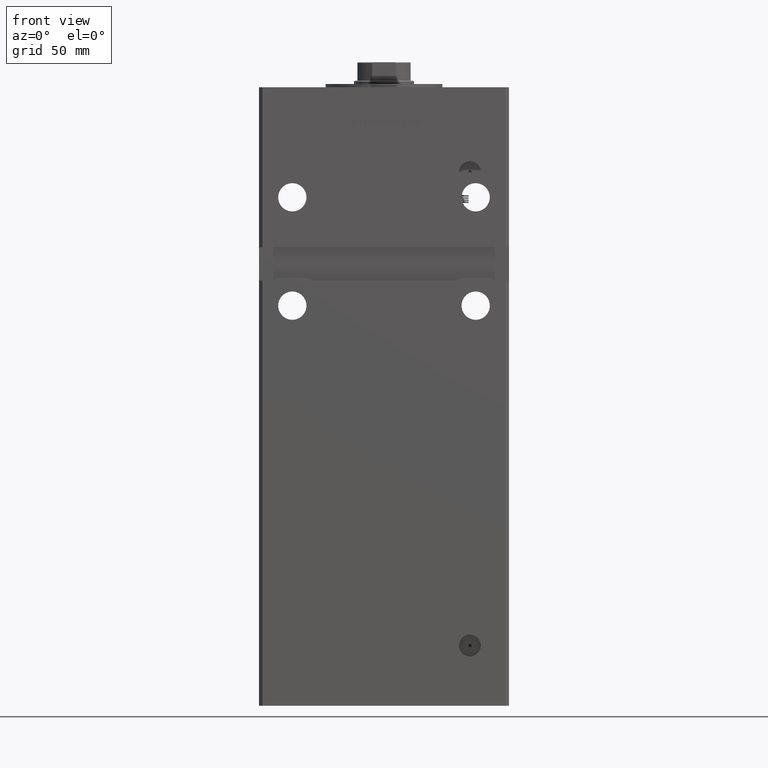
[diagram: clean part render]
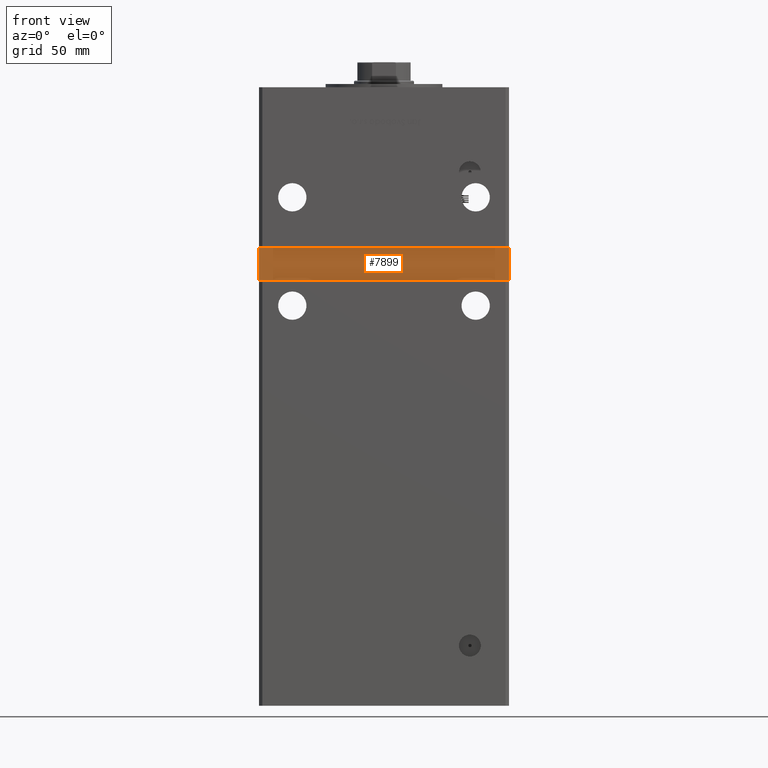
[diagram: same view with one face highlighted and labeled with its STEP entity id]
A machine part, front view. The second image highlights one B-rep face of the part: STEP entity #7899.
In plain terms, the highlighted planar face has unit normal (0, -1, 0).
Its self-contained STEP definition (entity closure, byte-faithful):
#382 = DIRECTION ( 'NONE',  ( 1.000000000000000000, 0.000000000000000000, 0.000000000000000000 ) ) ;
#1033 = LINE ( 'NONE', #35313, #27252 ) ;
#6308 = VERTEX_POINT ( 'NONE', #44085 ) ;
#7899 = ADVANCED_FACE ( 'NONE', ( #50427 ), #28889, .T. ) ;
#8209 = VECTOR ( 'NONE', #48724, 1000.000000000000000 ) ;
#9157 = LINE ( 'NONE', #48254, #12388 ) ;
#12103 = VERTEX_POINT ( 'NONE', #36241 ) ;
#12388 = VECTOR ( 'NONE', #382, 1000.000000000000000 ) ;
#12426 = EDGE_LOOP ( 'NONE', ( #56032, #46768, #53497, #24951 ) ) ;
#16163 = DIRECTION ( 'NONE',  ( 0.000000000000000000, -0.000000000000000000, -1.000000000000000000 ) ) ;
#17119 = CARTESIAN_POINT ( 'NONE',  ( 74.99999999999998579, -57.49999999999999289, 228.0000000000000000 ) ) ;
#18331 = DIRECTION ( 'NONE',  ( 0.000000000000000000, 0.000000000000000000, -1.000000000000000000 ) ) ;
#23275 = LINE ( 'NONE', #49048, #45822 ) ;
#24003 = AXIS2_PLACEMENT_3D ( 'NONE', #37114, #45890, #16163 ) ;
#24951 = ORIENTED_EDGE ( 'NONE', *, *, #26899, .T. ) ;
#26899 = EDGE_CURVE ( 'NONE', #12103, #53412, #9157, .T. ) ;
#27252 = VECTOR ( 'NONE', #18331, 1000.000000000000000 ) ;
#27285 = VERTEX_POINT ( 'NONE', #45534 ) ;
#28889 = PLANE ( 'NONE',  #24003 ) ;
#31437 = CARTESIAN_POINT ( 'NONE',  ( 74.99999999999998579, -57.50000000000000000, 248.0000000000000000 ) ) ;
#35313 = CARTESIAN_POINT ( 'NONE',  ( -74.99999999999998579, -57.50000000000000000, 248.0000000000000000 ) ) ;
#36241 = CARTESIAN_POINT ( 'NONE',  ( -74.99999999999998579, -57.50000000000000000, 228.0000000000000000 ) ) ;
#37114 = CARTESIAN_POINT ( 'NONE',  ( 0.000000000000000000, -57.50000000000000000, 0.000000000000000000 ) ) ;
#42053 = EDGE_CURVE ( 'NONE', #27285, #12103, #1033, .T. ) ;
#44085 = CARTESIAN_POINT ( 'NONE',  ( 74.99999999999998579, -57.50000000000000000, 248.0000000000000000 ) ) ;
#45534 = CARTESIAN_POINT ( 'NONE',  ( -74.99999999999998579, -57.50000000000000000, 248.0000000000000000 ) ) ;
#45822 = VECTOR ( 'NONE', #53589, 1000.000000000000000 ) ;
#45890 = DIRECTION ( 'NONE',  ( 0.000000000000000000, -1.000000000000000000, 0.000000000000000000 ) ) ;
#46768 = ORIENTED_EDGE ( 'NONE', *, *, #52848, .T. ) ;
#48254 = CARTESIAN_POINT ( 'NONE',  ( -74.99999999999998579, -57.50000000000000000, 228.0000000000000000 ) ) ;
#48724 = DIRECTION ( 'NONE',  ( -0.000000000000000000, -0.000000000000000000, 1.000000000000000000 ) ) ;
#49048 = CARTESIAN_POINT ( 'NONE',  ( -74.99999999999998579, -57.50000000000000000, 248.0000000000000000 ) ) ;
#50427 = FACE_OUTER_BOUND ( 'NONE', #12426, .T. ) ;
#52421 = LINE ( 'NONE', #31437, #8209 ) ;
#52848 = EDGE_CURVE ( 'NONE', #6308, #27285, #23275, .T. ) ;
#53412 = VERTEX_POINT ( 'NONE', #17119 ) ;
#53497 = ORIENTED_EDGE ( 'NONE', *, *, #42053, .T. ) ;
#53589 = DIRECTION ( 'NONE',  ( -1.000000000000000000, -0.000000000000000000, -0.000000000000000000 ) ) ;
#53994 = EDGE_CURVE ( 'NONE', #53412, #6308, #52421, .T. ) ;
#56032 = ORIENTED_EDGE ( 'NONE', *, *, #53994, .T. ) ;